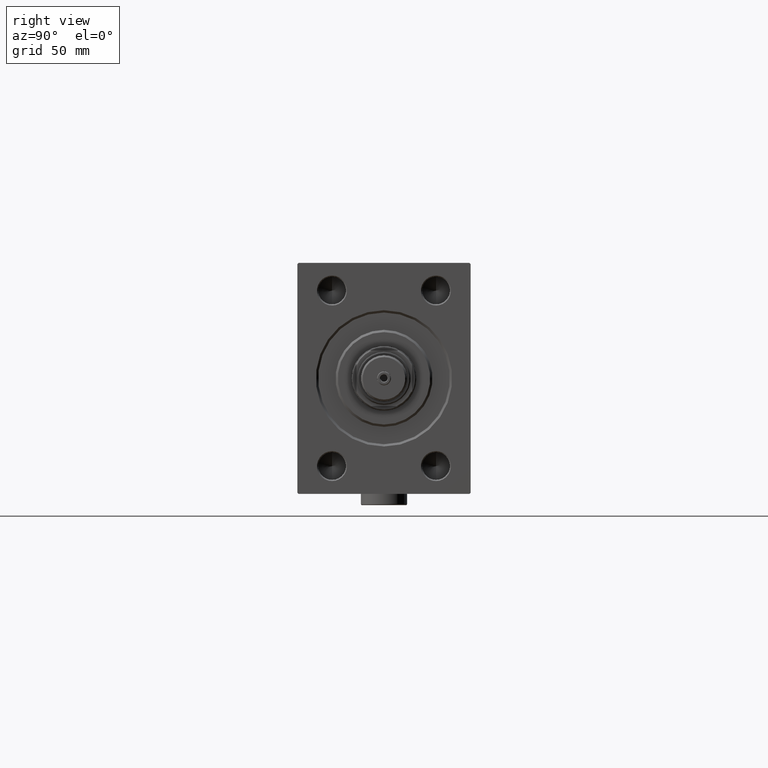
[diagram: clean part render]
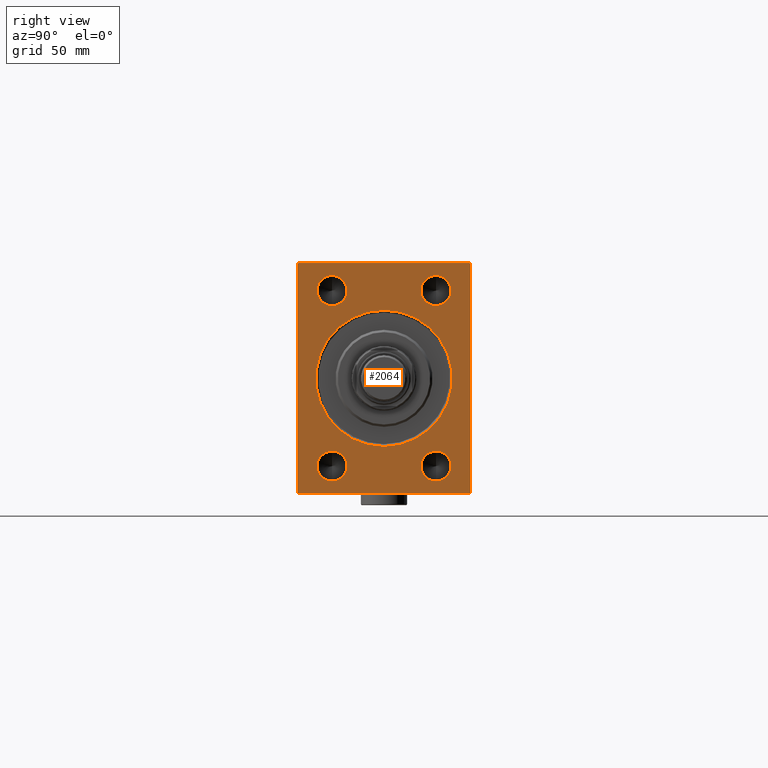
[diagram: same view with one face highlighted and labeled with its STEP entity id]
A machine part, right view. The second image highlights one B-rep face of the part: STEP entity #2064.
In plain terms, the highlighted planar face has unit normal (-1, 0, 0).
Its self-contained STEP definition (entity closure, byte-faithful):
#9 = CIRCLE ( 'NONE', #41736, 6.500000000000033751 ) ;
#101 = DIRECTION ( 'NONE',  ( 0.000000000000000000, -1.387778780781445429E-16, 1.000000000000000000 ) ) ;
#645 = DIRECTION ( 'NONE',  ( 0.000000000000000000, 0.000000000000000000, -1.000000000000000000 ) ) ;
#706 = DIRECTION ( 'NONE',  ( 0.000000000000000000, 0.000000000000000000, -1.000000000000000000 ) ) ;
#1183 = EDGE_CURVE ( 'NONE', #39264, #17110, #46147, .T. ) ;
#1524 = FACE_BOUND ( 'NONE', #30602, .T. ) ;
#2064 = ADVANCED_FACE ( 'NONE', ( #42676, #1524, #8913, #16547, #23938, #38738 ), #38977, .F. ) ;
#2153 = ORIENTED_EDGE ( 'NONE', *, *, #26067, .T. ) ;
#2392 = CARTESIAN_POINT ( 'NONE',  ( 0.000000000000000000, 22.49999999999999289, 44.50000000000003553 ) ) ;
#2432 = VECTOR ( 'NONE', #101, 1000.000000000000000 ) ;
#2579 = VERTEX_POINT ( 'NONE', #25712 ) ;
#2755 = DIRECTION ( 'NONE',  ( 0.000000000000000000, 0.000000000000000000, -1.000000000000000000 ) ) ;
#2853 = DIRECTION ( 'NONE',  ( -0.000000000000000000, 0.7071067811865474617, 0.7071067811865474617 ) ) ;
#2870 = DIRECTION ( 'NONE',  ( 1.000000000000000000, 0.000000000000000000, 0.000000000000000000 ) ) ;
#3150 = CARTESIAN_POINT ( 'NONE',  ( 0.000000000000000000, -37.00000000000000000, 49.99999999999998579 ) ) ;
#3777 = CIRCLE ( 'NONE', #34461, 6.500000000000033751 ) ;
#3831 = VECTOR ( 'NONE', #2755, 1000.000000000000000 ) ;
#3931 = VERTEX_POINT ( 'NONE', #8134 ) ;
#4215 = VERTEX_POINT ( 'NONE', #45072 ) ;
#4307 = ORIENTED_EDGE ( 'NONE', *, *, #20335, .T. ) ;
#5646 = VECTOR ( 'NONE', #20325, 1000.000000000000114 ) ;
#5680 = CARTESIAN_POINT ( 'NONE',  ( 0.000000000000000000, -22.50000000000000711, 44.50000000000003553 ) ) ;
#5807 = LINE ( 'NONE', #20854, #25381 ) ;
#6002 = LINE ( 'NONE', #43715, #45118 ) ;
#6841 = DIRECTION ( 'NONE',  ( 1.000000000000000000, 0.000000000000000000, 0.000000000000000000 ) ) ;
#6972 = DIRECTION ( 'NONE',  ( 0.000000000000000000, 0.000000000000000000, -1.000000000000000000 ) ) ;
#7164 = VECTOR ( 'NONE', #39545, 1000.000000000000114 ) ;
#7374 = EDGE_CURVE ( 'NONE', #26506, #28098, #18740, .T. ) ;
#7410 = CARTESIAN_POINT ( 'NONE',  ( 0.000000000000000000, -37.50000000000000000, 49.99999999999998579 ) ) ;
#7670 = ORIENTED_EDGE ( 'NONE', *, *, #35524, .F. ) ;
#7782 = CIRCLE ( 'NONE', #35334, 6.500000000000033751 ) ;
#7905 = DIRECTION ( 'NONE',  ( 1.000000000000000000, 0.000000000000000000, 0.000000000000000000 ) ) ;
#8134 = CARTESIAN_POINT ( 'NONE',  ( 0.000000000000000000, 36.99999999999998579, 50.00000000000001421 ) ) ;
#8665 = AXIS2_PLACEMENT_3D ( 'NONE', #14708, #6841, #44546 ) ;
#8682 = CARTESIAN_POINT ( 'NONE',  ( 0.000000000000000000, -37.50000000000000000, -50.00000000000001421 ) ) ;
#8913 = FACE_BOUND ( 'NONE', #12044, .T. ) ;
#9115 = VERTEX_POINT ( 'NONE', #24997 ) ;
#9228 = LINE ( 'NONE', #16378, #7164 ) ;
#9649 = DIRECTION ( 'NONE',  ( 0.000000000000000000, 0.000000000000000000, -1.000000000000000000 ) ) ;
#10565 = VERTEX_POINT ( 'NONE', #2392 ) ;
#10965 = ORIENTED_EDGE ( 'NONE', *, *, #25534, .T. ) ;
#11038 = CIRCLE ( 'NONE', #8665, 6.500000000000033751 ) ;
#12044 = EDGE_LOOP ( 'NONE', ( #38476, #4307 ) ) ;
#12644 = VECTOR ( 'NONE', #45213, 1000.000000000000114 ) ;
#13938 = EDGE_LOOP ( 'NONE', ( #2153, #47767 ) ) ;
#14344 = AXIS2_PLACEMENT_3D ( 'NONE', #30067, #45114, #41398 ) ;
#14708 = CARTESIAN_POINT ( 'NONE',  ( 0.000000000000000000, 22.49999999999999289, 38.00000000000000000 ) ) ;
#14712 = CARTESIAN_POINT ( 'NONE',  ( 0.000000000000000000, -22.50000000000000711, -38.00000000000000000 ) ) ;
#16021 = DIRECTION ( 'NONE',  ( 1.000000000000000000, 0.000000000000000000, 0.000000000000000000 ) ) ;
#16378 = CARTESIAN_POINT ( 'NONE',  ( 0.000000000000000000, -36.99999999999998579, -50.00000000000001421 ) ) ;
#16401 = DIRECTION ( 'NONE',  ( 0.000000000000000000, 0.000000000000000000, -1.000000000000000000 ) ) ;
#16547 = FACE_BOUND ( 'NONE', #13938, .T. ) ;
#16607 = AXIS2_PLACEMENT_3D ( 'NONE', #37620, #29502, #645 ) ;
#17110 = VERTEX_POINT ( 'NONE', #26635 ) ;
#17264 = ORIENTED_EDGE ( 'NONE', *, *, #28510, .T. ) ;
#18128 = LINE ( 'NONE', #22773, #12644 ) ;
#18740 = LINE ( 'NONE', #7410, #3831 ) ;
#19025 = ORIENTED_EDGE ( 'NONE', *, *, #37460, .F. ) ;
#19756 = CIRCLE ( 'NONE', #16607, 29.50000000000004263 ) ;
#20015 = CARTESIAN_POINT ( 'NONE',  ( 0.000000000000000000, 0.000000000000000000, 0.000000000000000000 ) ) ;
#20325 = DIRECTION ( 'NONE',  ( 0.000000000000000000, -0.7071067811865474617, -0.7071067811865474617 ) ) ;
#20335 = EDGE_CURVE ( 'NONE', #46425, #34375, #3777, .T. ) ;
#20642 = VERTEX_POINT ( 'NONE', #37148 ) ;
#20854 = CARTESIAN_POINT ( 'NONE',  ( 0.000000000000000000, -37.50000000000000000, 49.49999999999998579 ) ) ;
#21604 = CARTESIAN_POINT ( 'NONE',  ( 0.000000000000000000, 22.49999999999999289, -38.00000000000000000 ) ) ;
#21779 = DIRECTION ( 'NONE',  ( 0.000000000000000000, -1.000000000000000000, -3.700743415417189125E-16 ) ) ;
#22412 = CARTESIAN_POINT ( 'NONE',  ( 0.000000000000000000, -22.50000000000000711, 38.00000000000000000 ) ) ;
#22590 = VERTEX_POINT ( 'NONE', #31749 ) ;
#22700 = CARTESIAN_POINT ( 'NONE',  ( 0.000000000000000000, -22.50000000000000711, -38.00000000000000000 ) ) ;
#22773 = CARTESIAN_POINT ( 'NONE',  ( 0.000000000000000000, 36.99999999999998579, 50.00000000000001421 ) ) ;
#22942 = DIRECTION ( 'NONE',  ( 0.000000000000000000, 0.000000000000000000, -1.000000000000000000 ) ) ;
#22991 = EDGE_CURVE ( 'NONE', #17110, #39264, #7782, .T. ) ;
#23131 = DIRECTION ( 'NONE',  ( 1.000000000000000000, 0.000000000000000000, 0.000000000000000000 ) ) ;
#23694 = ORIENTED_EDGE ( 'NONE', *, *, #47270, .T. ) ;
#23938 = FACE_BOUND ( 'NONE', #38214, .T. ) ;
#24111 = AXIS2_PLACEMENT_3D ( 'NONE', #20015, #35038, #9649 ) ;
#24424 = ORIENTED_EDGE ( 'NONE', *, *, #29818, .T. ) ;
#24501 = ORIENTED_EDGE ( 'NONE', *, *, #31284, .T. ) ;
#24997 = CARTESIAN_POINT ( 'NONE',  ( 0.000000000000000000, 22.49999999999999289, 31.49999999999996447 ) ) ;
#25381 = VECTOR ( 'NONE', #2853, 1000.000000000000114 ) ;
#25534 = EDGE_CURVE ( 'NONE', #35660, #4215, #9, .T. ) ;
#25712 = CARTESIAN_POINT ( 'NONE',  ( 0.000000000000000000, 37.49999999999998579, 49.50000000000001421 ) ) ;
#25965 = VERTEX_POINT ( 'NONE', #26044 ) ;
#26003 = EDGE_CURVE ( 'NONE', #9115, #10565, #11038, .T. ) ;
#26044 = CARTESIAN_POINT ( 'NONE',  ( 0.000000000000000000, 3.612708057484697126E-15, -29.50000000000004263 ) ) ;
#26067 = EDGE_CURVE ( 'NONE', #10565, #9115, #37799, .T. ) ;
#26215 = EDGE_CURVE ( 'NONE', #38108, #2579, #26459, .T. ) ;
#26235 = EDGE_CURVE ( 'NONE', #3931, #2579, #18128, .T. ) ;
#26459 = LINE ( 'NONE', #30167, #2432 ) ;
#26506 = VERTEX_POINT ( 'NONE', #32355 ) ;
#26635 = CARTESIAN_POINT ( 'NONE',  ( 0.000000000000000000, 22.49999999999999289, -31.49999999999996447 ) ) ;
#26964 = ORIENTED_EDGE ( 'NONE', *, *, #43879, .T. ) ;
#27247 = DIRECTION ( 'NONE',  ( 1.000000000000000000, 0.000000000000000000, 0.000000000000000000 ) ) ;
#27653 = DIRECTION ( 'NONE',  ( 0.000000000000000000, 1.000000000000000000, 1.850371707708594316E-16 ) ) ;
#27705 = LINE ( 'NONE', #31160, #5646 ) ;
#28098 = VERTEX_POINT ( 'NONE', #48291 ) ;
#28344 = ORIENTED_EDGE ( 'NONE', *, *, #26215, .F. ) ;
#28482 = ORIENTED_EDGE ( 'NONE', *, *, #26235, .T. ) ;
#28510 = EDGE_CURVE ( 'NONE', #38108, #22590, #27705, .T. ) ;
#28608 = EDGE_LOOP ( 'NONE', ( #26964, #24424 ) ) ;
#29502 = DIRECTION ( 'NONE',  ( 1.000000000000000000, 0.000000000000000000, 0.000000000000000000 ) ) ;
#29818 = EDGE_CURVE ( 'NONE', #25965, #20642, #40310, .T. ) ;
#30067 = CARTESIAN_POINT ( 'NONE',  ( 0.000000000000000000, 0.000000000000000000, 0.000000000000000000 ) ) ;
#30167 = CARTESIAN_POINT ( 'NONE',  ( 0.000000000000000000, 37.50000000000000000, -50.00000000000000000 ) ) ;
#30364 = CARTESIAN_POINT ( 'NONE',  ( 0.000000000000000000, -22.50000000000000711, -44.50000000000003553 ) ) ;
#30602 = EDGE_LOOP ( 'NONE', ( #34467, #10965 ) ) ;
#31050 = DIRECTION ( 'NONE',  ( 0.000000000000000000, 0.000000000000000000, -1.000000000000000000 ) ) ;
#31160 = CARTESIAN_POINT ( 'NONE',  ( 0.000000000000000000, 37.50000000000000000, -49.50000000000000000 ) ) ;
#31193 = CARTESIAN_POINT ( 'NONE',  ( 0.000000000000000000, 22.49999999999999289, 38.00000000000000000 ) ) ;
#31284 = EDGE_CURVE ( 'NONE', #38317, #28098, #9228, .T. ) ;
#31749 = CARTESIAN_POINT ( 'NONE',  ( 0.000000000000000000, 37.00000000000000000, -50.00000000000000000 ) ) ;
#31967 = CARTESIAN_POINT ( 'NONE',  ( 0.000000000000000000, 37.50000000000000000, -49.50000000000000000 ) ) ;
#32355 = CARTESIAN_POINT ( 'NONE',  ( 0.000000000000000000, -37.50000000000000000, 49.49999999999998579 ) ) ;
#32568 = EDGE_CURVE ( 'NONE', #34375, #46425, #34772, .T. ) ;
#32925 = DIRECTION ( 'NONE',  ( 0.000000000000000000, 0.000000000000000000, -1.000000000000000000 ) ) ;
#33208 = DIRECTION ( 'NONE',  ( 0.000000000000000000, 0.000000000000000000, -1.000000000000000000 ) ) ;
#34307 = AXIS2_PLACEMENT_3D ( 'NONE', #21604, #2870, #32925 ) ;
#34375 = VERTEX_POINT ( 'NONE', #5680 ) ;
#34461 = AXIS2_PLACEMENT_3D ( 'NONE', #22412, #23131, #706 ) ;
#34467 = ORIENTED_EDGE ( 'NONE', *, *, #34823, .T. ) ;
#34772 = CIRCLE ( 'NONE', #41061, 6.500000000000033751 ) ;
#34823 = EDGE_CURVE ( 'NONE', #4215, #35660, #37214, .T. ) ;
#35038 = DIRECTION ( 'NONE',  ( 1.000000000000000000, 0.000000000000000000, 0.000000000000000000 ) ) ;
#35334 = AXIS2_PLACEMENT_3D ( 'NONE', #44438, #44193, #6972 ) ;
#35524 = EDGE_CURVE ( 'NONE', #3931, #39254, #6002, .T. ) ;
#35647 = AXIS2_PLACEMENT_3D ( 'NONE', #14712, #36428, #33208 ) ;
#35660 = VERTEX_POINT ( 'NONE', #30364 ) ;
#35767 = EDGE_LOOP ( 'NONE', ( #46028, #23694, #7670, #28482, #28344, #17264, #19025, #24501 ) ) ;
#36110 = CARTESIAN_POINT ( 'NONE',  ( 0.000000000000000000, -22.50000000000000711, 31.49999999999996447 ) ) ;
#36417 = CARTESIAN_POINT ( 'NONE',  ( 0.000000000000000000, -36.99999999999998579, -50.00000000000001421 ) ) ;
#36428 = DIRECTION ( 'NONE',  ( 1.000000000000000000, 0.000000000000000000, 0.000000000000000000 ) ) ;
#37148 = CARTESIAN_POINT ( 'NONE',  ( 0.000000000000000000, 0.000000000000000000, 29.50000000000004263 ) ) ;
#37155 = CARTESIAN_POINT ( 'NONE',  ( 0.000000000000000000, 22.49999999999999289, -44.50000000000003553 ) ) ;
#37214 = CIRCLE ( 'NONE', #35647, 6.500000000000033751 ) ;
#37460 = EDGE_CURVE ( 'NONE', #38317, #22590, #42452, .T. ) ;
#37620 = CARTESIAN_POINT ( 'NONE',  ( 0.000000000000000000, 0.000000000000000000, 0.000000000000000000 ) ) ;
#37799 = CIRCLE ( 'NONE', #42505, 6.500000000000033751 ) ;
#38108 = VERTEX_POINT ( 'NONE', #31967 ) ;
#38214 = EDGE_LOOP ( 'NONE', ( #39209, #43051 ) ) ;
#38317 = VERTEX_POINT ( 'NONE', #36417 ) ;
#38476 = ORIENTED_EDGE ( 'NONE', *, *, #32568, .T. ) ;
#38738 = FACE_OUTER_BOUND ( 'NONE', #35767, .T. ) ;
#38854 = VECTOR ( 'NONE', #27653, 1000.000000000000000 ) ;
#38977 = PLANE ( 'NONE',  #24111 ) ;
#39209 = ORIENTED_EDGE ( 'NONE', *, *, #22991, .T. ) ;
#39254 = VERTEX_POINT ( 'NONE', #3150 ) ;
#39264 = VERTEX_POINT ( 'NONE', #37155 ) ;
#39545 = DIRECTION ( 'NONE',  ( -0.000000000000000000, -0.7071067811865474617, 0.7071067811865474617 ) ) ;
#40310 = CIRCLE ( 'NONE', #14344, 29.50000000000004263 ) ;
#41061 = AXIS2_PLACEMENT_3D ( 'NONE', #42148, #16021, #31050 ) ;
#41398 = DIRECTION ( 'NONE',  ( 0.000000000000000000, 0.000000000000000000, -1.000000000000000000 ) ) ;
#41736 = AXIS2_PLACEMENT_3D ( 'NONE', #22700, #7905, #22942 ) ;
#42148 = CARTESIAN_POINT ( 'NONE',  ( 0.000000000000000000, -22.50000000000000711, 38.00000000000000000 ) ) ;
#42452 = LINE ( 'NONE', #8682, #38854 ) ;
#42505 = AXIS2_PLACEMENT_3D ( 'NONE', #31193, #27247, #16401 ) ;
#42676 = FACE_BOUND ( 'NONE', #28608, .T. ) ;
#43051 = ORIENTED_EDGE ( 'NONE', *, *, #1183, .T. ) ;
#43715 = CARTESIAN_POINT ( 'NONE',  ( 0.000000000000000000, 37.49999999999998579, 50.00000000000001421 ) ) ;
#43879 = EDGE_CURVE ( 'NONE', #20642, #25965, #19756, .T. ) ;
#44193 = DIRECTION ( 'NONE',  ( 1.000000000000000000, 0.000000000000000000, 0.000000000000000000 ) ) ;
#44438 = CARTESIAN_POINT ( 'NONE',  ( 0.000000000000000000, 22.49999999999999289, -38.00000000000000000 ) ) ;
#44546 = DIRECTION ( 'NONE',  ( 0.000000000000000000, 0.000000000000000000, -1.000000000000000000 ) ) ;
#45072 = CARTESIAN_POINT ( 'NONE',  ( 0.000000000000000000, -22.50000000000000711, -31.49999999999996447 ) ) ;
#45114 = DIRECTION ( 'NONE',  ( 1.000000000000000000, 0.000000000000000000, 0.000000000000000000 ) ) ;
#45118 = VECTOR ( 'NONE', #21779, 1000.000000000000000 ) ;
#45213 = DIRECTION ( 'NONE',  ( -0.000000000000000000, 0.7071067811865474617, -0.7071067811865474617 ) ) ;
#46028 = ORIENTED_EDGE ( 'NONE', *, *, #7374, .F. ) ;
#46147 = CIRCLE ( 'NONE', #34307, 6.500000000000033751 ) ;
#46425 = VERTEX_POINT ( 'NONE', #36110 ) ;
#47270 = EDGE_CURVE ( 'NONE', #26506, #39254, #5807, .T. ) ;
#47767 = ORIENTED_EDGE ( 'NONE', *, *, #26003, .T. ) ;
#48291 = CARTESIAN_POINT ( 'NONE',  ( 0.000000000000000000, -37.50000000000000000, -49.50000000000000000 ) ) ;